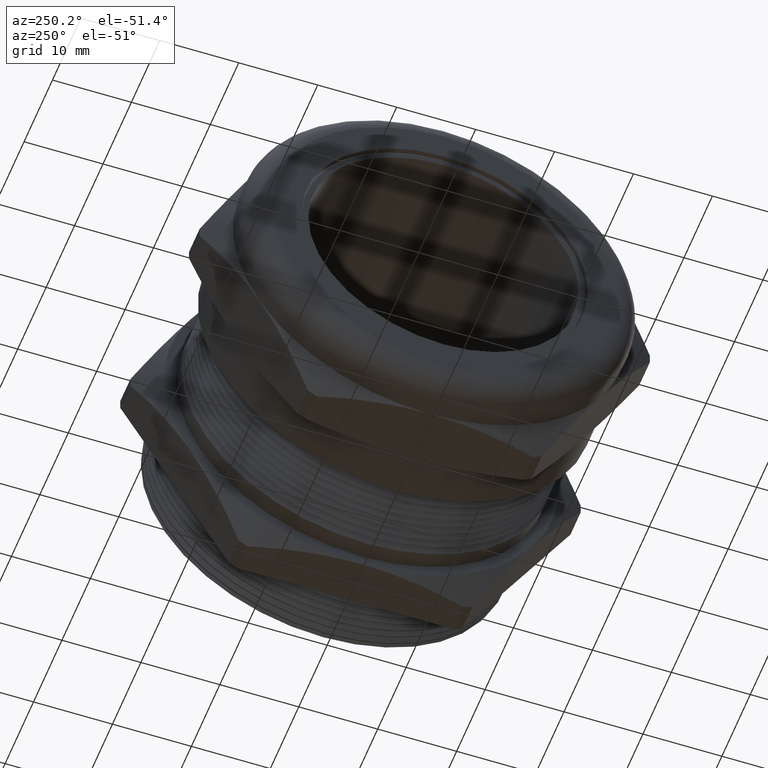
[diagram: clean part render]
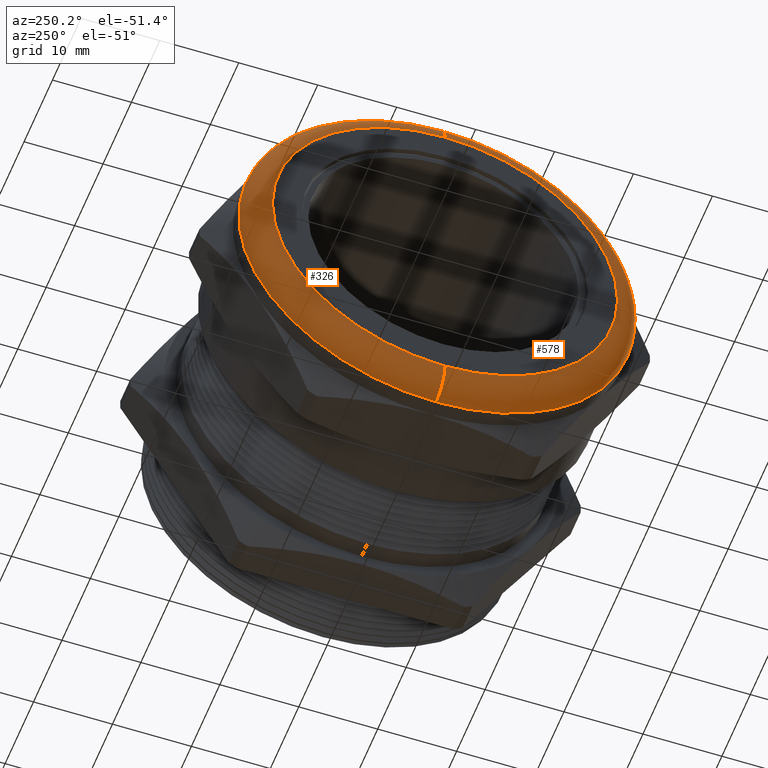
[diagram: same view with one multi-face feature highlighted, each face labeled with its STEP entity id]
A machine part, auxiliary view. The highlighted faces form ONE feature: a constant-radius fillet chain: 2 tangent blend faces with common blend radius 3.1547 mm. The faces share edges in the B-rep.
Their STEP definitions:
[1] entity #578 (Torus):
#306 = EDGE_CURVE ( 'NONE', #336, #340, #1348, .T. ) ;
#331 = VERTEX_POINT ( 'NONE', #1435 ) ;
#336 = VERTEX_POINT ( 'NONE', #1425 ) ;
#338 = EDGE_CURVE ( 'NONE', #331, #339, #1424, .T. ) ;
#339 = VERTEX_POINT ( 'NONE', #1419 ) ;
#340 = VERTEX_POINT ( 'NONE', #1418 ) ;
#439 = EDGE_CURVE ( 'NONE', #336, #331, #1652, .T. ) ;
#482 = EDGE_CURVE ( 'NONE', #339, #340, #1708, .T. ) ;
#578 = ADVANCED_FACE ( 'NONE', ( #1803 ), #1802, .T. ) ;
#579 = ORIENTED_EDGE ( 'NONE', *, *, #338, .F. ) ;
#580 = ORIENTED_EDGE ( 'NONE', *, *, #439, .F. ) ;
#581 = ORIENTED_EDGE ( 'NONE', *, *, #306, .T. ) ;
#582 = ORIENTED_EDGE ( 'NONE', *, *, #482, .F. ) ;
#601 = EDGE_LOOP ( 'NONE', ( #579, #580, #581, #582 ) ) ;
#1345 = DIRECTION ( 'NONE',  ( 0.0000000000000000000, 0.0000000000000000000, -1.000000000000000000 ) ) ;
#1346 = DIRECTION ( 'NONE',  ( 0.0000000000000000000, -1.000000000000000000, 0.0000000000000000000 ) ) ;
#1347 = AXIS2_PLACEMENT_3D ( 'NONE', #1353, #1346, #1345 ) ;
#1348 = CIRCLE ( 'NONE', #1347, 0.1242000000000000000 ) ;
#1353 = CARTESIAN_POINT ( 'NONE',  ( -0.7207999999999998900, 0.0000000000000000000, -0.8608000000000000100 ) ) ;
#1418 = CARTESIAN_POINT ( 'NONE',  ( -0.7207999999999998900, 1.206277097160143100E-016, -0.9849999999999999900 ) ) ;
#1419 = CARTESIAN_POINT ( 'NONE',  ( -0.7207999999999998900, 0.0000000000000000000, 0.9849999999999999900 ) ) ;
#1420 = DIRECTION ( 'NONE',  ( 0.0000000000000000000, 1.224646799147353000E-016, 1.000000000000000000 ) ) ;
#1421 = DIRECTION ( 'NONE',  ( 0.0000000000000000000, 1.000000000000000000, -1.224646799147353200E-016 ) ) ;
#1422 = CARTESIAN_POINT ( 'NONE',  ( -0.7207999999999998900, 1.054175964706041700E-016, 0.8608000000000000100 ) ) ;
#1423 = AXIS2_PLACEMENT_3D ( 'NONE', #1422, #1421, #1420 ) ;
#1424 = CIRCLE ( 'NONE', #1423, 0.1242000000000000000 ) ;
#1425 = CARTESIAN_POINT ( 'NONE',  ( -0.8449999999999998600, 0.0000000000000000000, -0.8608000000000000100 ) ) ;
#1435 = CARTESIAN_POINT ( 'NONE',  ( -0.8449999999999998600, 1.130226530933092200E-016, 0.8608000000000000100 ) ) ;
#1648 = DIRECTION ( 'NONE',  ( 0.0000000000000000000, 0.0000000000000000000, -1.000000000000000000 ) ) ;
#1649 = DIRECTION ( 'NONE',  ( -1.000000000000000000, 0.0000000000000000000, 0.0000000000000000000 ) ) ;
#1650 = CARTESIAN_POINT ( 'NONE',  ( -0.8449999999999998600, 0.0000000000000000000, 0.0000000000000000000 ) ) ;
#1651 = AXIS2_PLACEMENT_3D ( 'NONE', #1650, #1649, #1648 ) ;
#1652 = CIRCLE ( 'NONE', #1651, 0.8608000000000000100 ) ;
#1705 = DIRECTION ( 'NONE',  ( 0.0000000000000000000, 0.0000000000000000000, -1.000000000000000000 ) ) ;
#1706 = DIRECTION ( 'NONE',  ( 1.000000000000000000, 0.0000000000000000000, 0.0000000000000000000 ) ) ;
#1707 = AXIS2_PLACEMENT_3D ( 'NONE', #1713, #1706, #1705 ) ;
#1708 = CIRCLE ( 'NONE', #1707, 0.9849999999999999900 ) ;
#1713 = CARTESIAN_POINT ( 'NONE',  ( -0.7207999999999998900, 0.0000000000000000000, 0.0000000000000000000 ) ) ;
#1799 = DIRECTION ( 'NONE',  ( 0.0000000000000000000, 0.0000000000000000000, -1.000000000000000000 ) ) ;
#1800 = DIRECTION ( 'NONE',  ( 1.000000000000000000, 0.0000000000000000000, 0.0000000000000000000 ) ) ;
#1801 = AXIS2_PLACEMENT_3D ( 'NONE', #1807, #1800, #1799 ) ;
#1802 = TOROIDAL_SURFACE ( 'NONE', #1801, 0.8608000000000000100, 0.1241999999999999900 ) ;
#1803 = FACE_OUTER_BOUND ( 'NONE', #601, .T. ) ;
#1807 = CARTESIAN_POINT ( 'NONE',  ( -0.7207999999999998900, 0.0000000000000000000, 0.0000000000000000000 ) ) ;
[2] entity #326 (Torus):
#306 = EDGE_CURVE ( 'NONE', #336, #340, #1348, .T. ) ;
#326 = ADVANCED_FACE ( 'NONE', ( #1381 ), #1378, .T. ) ;
#327 = EDGE_LOOP ( 'NONE', ( #328, #337, #332, #334 ) ) ;
#328 = ORIENTED_EDGE ( 'NONE', *, *, #330, .F. ) ;
#330 = EDGE_CURVE ( 'NONE', #331, #336, #1379, .T. ) ;
#331 = VERTEX_POINT ( 'NONE', #1435 ) ;
#332 = ORIENTED_EDGE ( 'NONE', *, *, #333, .F. ) ;
#333 = EDGE_CURVE ( 'NONE', #340, #339, #1434, .T. ) ;
#334 = ORIENTED_EDGE ( 'NONE', *, *, #306, .F. ) ;
#336 = VERTEX_POINT ( 'NONE', #1425 ) ;
#337 = ORIENTED_EDGE ( 'NONE', *, *, #338, .T. ) ;
#338 = EDGE_CURVE ( 'NONE', #331, #339, #1424, .T. ) ;
#339 = VERTEX_POINT ( 'NONE', #1419 ) ;
#340 = VERTEX_POINT ( 'NONE', #1418 ) ;
#1345 = DIRECTION ( 'NONE',  ( 0.0000000000000000000, 0.0000000000000000000, -1.000000000000000000 ) ) ;
#1346 = DIRECTION ( 'NONE',  ( 0.0000000000000000000, -1.000000000000000000, 0.0000000000000000000 ) ) ;
#1347 = AXIS2_PLACEMENT_3D ( 'NONE', #1353, #1346, #1345 ) ;
#1348 = CIRCLE ( 'NONE', #1347, 0.1242000000000000000 ) ;
#1353 = CARTESIAN_POINT ( 'NONE',  ( -0.7207999999999998900, 0.0000000000000000000, -0.8608000000000000100 ) ) ;
#1375 = DIRECTION ( 'NONE',  ( 0.0000000000000000000, 0.0000000000000000000, -1.000000000000000000 ) ) ;
#1376 = DIRECTION ( 'NONE',  ( 1.000000000000000000, 0.0000000000000000000, 0.0000000000000000000 ) ) ;
#1377 = AXIS2_PLACEMENT_3D ( 'NONE', #1380, #1376, #1375 ) ;
#1378 = TOROIDAL_SURFACE ( 'NONE', #1377, 0.8608000000000000100, 0.1241999999999999900 ) ;
#1379 = CIRCLE ( 'NONE', #1439, 0.8608000000000000100 ) ;
#1380 = CARTESIAN_POINT ( 'NONE',  ( -0.7207999999999998900, 0.0000000000000000000, 0.0000000000000000000 ) ) ;
#1381 = FACE_OUTER_BOUND ( 'NONE', #327, .T. ) ;
#1418 = CARTESIAN_POINT ( 'NONE',  ( -0.7207999999999998900, 1.206277097160143100E-016, -0.9849999999999999900 ) ) ;
#1419 = CARTESIAN_POINT ( 'NONE',  ( -0.7207999999999998900, 0.0000000000000000000, 0.9849999999999999900 ) ) ;
#1420 = DIRECTION ( 'NONE',  ( 0.0000000000000000000, 1.224646799147353000E-016, 1.000000000000000000 ) ) ;
#1421 = DIRECTION ( 'NONE',  ( 0.0000000000000000000, 1.000000000000000000, -1.224646799147353200E-016 ) ) ;
#1422 = CARTESIAN_POINT ( 'NONE',  ( -0.7207999999999998900, 1.054175964706041700E-016, 0.8608000000000000100 ) ) ;
#1423 = AXIS2_PLACEMENT_3D ( 'NONE', #1422, #1421, #1420 ) ;
#1424 = CIRCLE ( 'NONE', #1423, 0.1242000000000000000 ) ;
#1425 = CARTESIAN_POINT ( 'NONE',  ( -0.8449999999999998600, 0.0000000000000000000, -0.8608000000000000100 ) ) ;
#1430 = DIRECTION ( 'NONE',  ( 0.0000000000000000000, 0.0000000000000000000, -1.000000000000000000 ) ) ;
#1431 = DIRECTION ( 'NONE',  ( 1.000000000000000000, 0.0000000000000000000, 0.0000000000000000000 ) ) ;
#1432 = CARTESIAN_POINT ( 'NONE',  ( -0.7207999999999998900, 0.0000000000000000000, 0.0000000000000000000 ) ) ;
#1433 = AXIS2_PLACEMENT_3D ( 'NONE', #1432, #1431, #1430 ) ;
#1434 = CIRCLE ( 'NONE', #1433, 0.9849999999999999900 ) ;
#1435 = CARTESIAN_POINT ( 'NONE',  ( -0.8449999999999998600, 1.130226530933092200E-016, 0.8608000000000000100 ) ) ;
#1436 = DIRECTION ( 'NONE',  ( 0.0000000000000000000, 0.0000000000000000000, -1.000000000000000000 ) ) ;
#1437 = DIRECTION ( 'NONE',  ( -1.000000000000000000, 0.0000000000000000000, 0.0000000000000000000 ) ) ;
#1438 = CARTESIAN_POINT ( 'NONE',  ( -0.8449999999999998600, 0.0000000000000000000, 0.0000000000000000000 ) ) ;
#1439 = AXIS2_PLACEMENT_3D ( 'NONE', #1438, #1437, #1436 ) ;